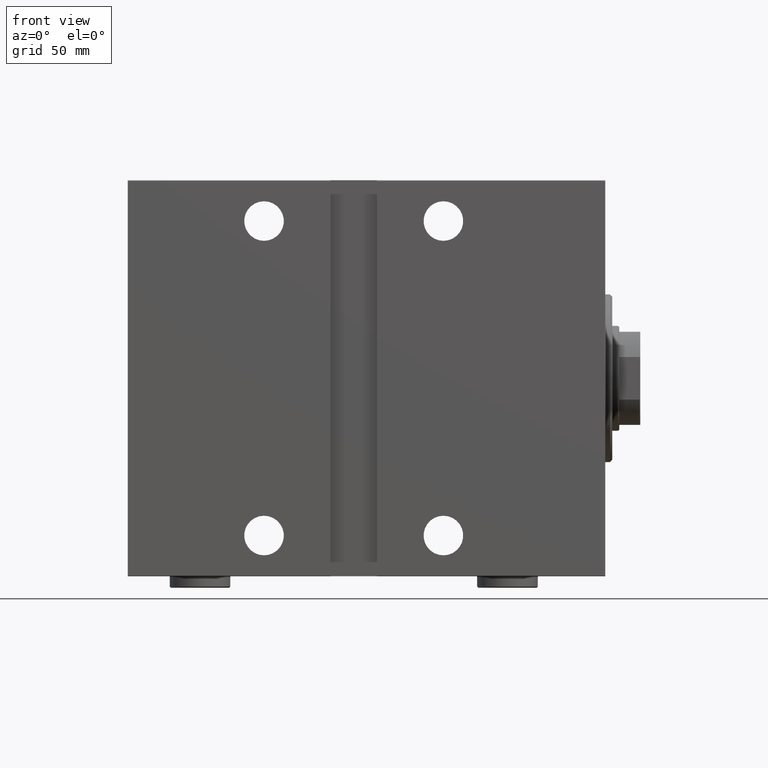
[diagram: clean part render]
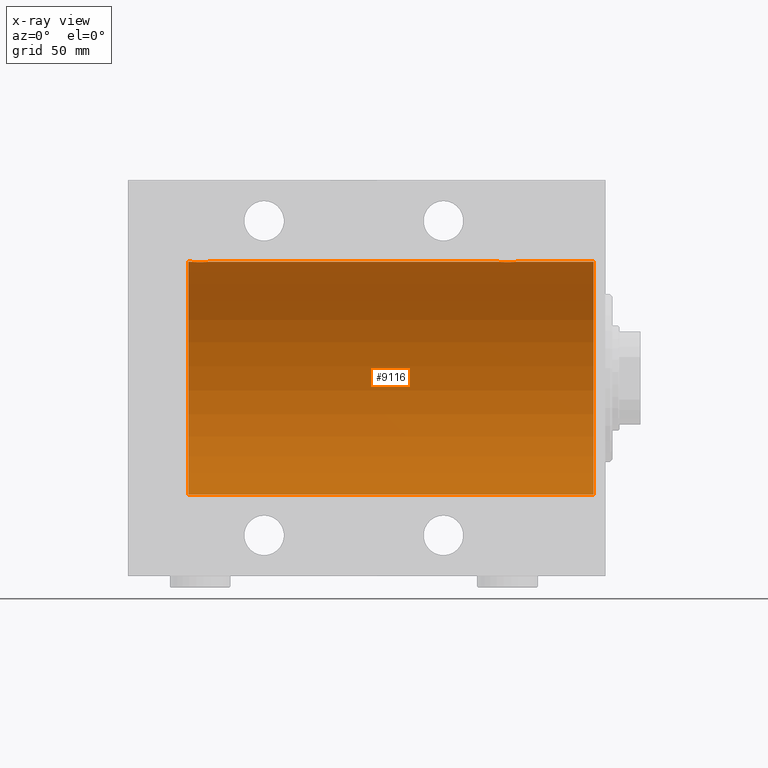
[diagram: x-ray — body ghosted, one internal face saturated and labeled with its STEP entity id]
A machine part, front view, then the same camera in x-ray: the body is ghosted and one INTERNAL B-rep face — a face not visible from any outside direction — is saturated and labeled: STEP entity #9116.
In plain terms, the highlighted cylindrical surface (partial cylindrical patch) has radius 50 mm, axis along (1, 0, -0).
Its self-contained STEP definition (entity closure, byte-faithful):
#615 = CARTESIAN_POINT ( 'NONE',  ( 45.37519984081967550, -2.597781786597460840, 49.93300953359122474 ) ) ;
#955 = DIRECTION ( 'NONE',  ( 0.000000000000000000, 0.000000000000000000, 1.000000000000000000 ) ) ;
#1015 = CARTESIAN_POINT ( 'NONE',  ( 5.000000000000004441, 6.123233995736764507E-15, -50.00000000000000000 ) ) ;
#1061 = CARTESIAN_POINT ( 'NONE',  ( 37.75000000000001421, -0.2773743941468539420, 50.00000000000000711 ) ) ;
#1228 = CARTESIAN_POINT ( 'NONE',  ( 169.7499999999999716, -2.480257572105383217E-23, 50.00000000000000000 ) ) ;
#1283 = CARTESIAN_POINT ( 'NONE',  ( 46.25000000000004263, -0.2808785465865667463, 50.00000000000001421 ) ) ;
#1499 = CARTESIAN_POINT ( 'NONE',  ( 46.11249701080335228, -1.108337267831485340, 49.98846998601261760 ) ) ;
#2008 = CARTESIAN_POINT ( 'NONE',  ( 179.0000000000000000, 0.000000000000000000, 0.000000000000000000 ) ) ;
#2293 = VECTOR ( 'NONE', #17291, 1000.000000000000000 ) ;
#2385 = EDGE_CURVE ( 'NONE', #6071, #35838, #18098, .T. ) ;
#2756 = CARTESIAN_POINT ( 'NONE',  ( 172.8967670396578740, -4.113647494206492006, 49.83052139214891696 ) ) ;
#2974 = CARTESIAN_POINT ( 'NONE',  ( 176.5882021467620575, -3.382416624899780899, 49.88570010427955737 ) ) ;
#3199 = CARTESIAN_POINT ( 'NONE',  ( 174.2772492703791727, -4.250219976861650650, 49.81902879621013369 ) ) ;
#3539 = EDGE_CURVE ( 'NONE', #17909, #41867, #19573, .T. ) ;
#3624 = CARTESIAN_POINT ( 'NONE',  ( 178.1124970108033381, -1.108337267831492889, 49.98846998601261760 ) ) ;
#4444 = VERTEX_POINT ( 'NONE', #41959 ) ;
#4650 = CARTESIAN_POINT ( 'NONE',  ( 41.44002132304353125, -4.222042462213122960, 49.82145436824652762 ) ) ;
#4800 = DIRECTION ( 'NONE',  ( -1.000000000000000000, -0.000000000000000000, -0.000000000000000000 ) ) ;
#5048 = CARTESIAN_POINT ( 'NONE',  ( 179.0000000000000000, 6.123233995736764507E-15, -50.00000000000000000 ) ) ;
#5268 = EDGE_CURVE ( 'NONE', #28151, #35838, #34340, .T. ) ;
#5664 = CARTESIAN_POINT ( 'NONE',  ( 37.75000000000000711, -2.480809774739037926E-23, 50.00000000000000000 ) ) ;
#5953 = AXIS2_PLACEMENT_3D ( 'NONE', #14644, #29231, #955 ) ;
#6071 = VERTEX_POINT ( 'NONE', #1015 ) ;
#6346 = CARTESIAN_POINT ( 'NONE',  ( 175.0973761787903982, -4.115209769591112732, 49.83039196709102470 ) ) ;
#6464 = CARTESIAN_POINT ( 'NONE',  ( 179.0000000000000000, 6.123233995736764507E-15, -50.00000000000000000 ) ) ;
#6503 = ORIENTED_EDGE ( 'NONE', *, *, #5268, .F. ) ;
#6997 = CARTESIAN_POINT ( 'NONE',  ( 177.3751998408196471, -2.597781786597468390, 49.93300953359122474 ) ) ;
#7578 = CARTESIAN_POINT ( 'NONE',  ( 38.17899418014773261, -1.881229021238125521, 49.96525240872481533 ) ) ;
#8018 = CARTESIAN_POINT ( 'NONE',  ( 44.58820214676201488, -3.382416624899780011, 49.88570010427956447 ) ) ;
#8374 = CARTESIAN_POINT ( 'NONE',  ( 169.7499999999999432, -0.2773743941468554408, 50.00000000000000711 ) ) ;
#8463 = CARTESIAN_POINT ( 'NONE',  ( 40.62666563420964394, -4.031616700143186627, 49.83731072121798888 ) ) ;
#8880 = VECTOR ( 'NONE', #4800, 1000.000000000000000 ) ;
#9116 = ADVANCED_FACE ( 'NONE', ( #24983 ), #32361, .F. ) ;
#9484 = CARTESIAN_POINT ( 'NONE',  ( 178.2500000000000000, 3.264240518254796977E-15, 50.00000000000000000 ) ) ;
#10370 = CARTESIAN_POINT ( 'NONE',  ( 177.1992192796128052, -2.811461347331109639, 49.92127983148852621 ) ) ;
#10941 = CARTESIAN_POINT ( 'NONE',  ( 41.71604712973303464, -4.249777379711404457, 49.81906655360197078 ) ) ;
#11164 = CARTESIAN_POINT ( 'NONE',  ( 38.62118282736263097, -2.593114840406128163, 49.93325460257639747 ) ) ;
#11604 = CARTESIAN_POINT ( 'NONE',  ( 40.89676703965783844, -4.113647494206482236, 49.83052139214890985 ) ) ;
#12652 = EDGE_CURVE ( 'NONE', #33656, #26830, #30272, .T. ) ;
#13077 = CARTESIAN_POINT ( 'NONE',  ( 178.2224263552078298, -0.5587117664567154973, 49.99763378604802000 ) ) ;
#13307 = CARTESIAN_POINT ( 'NONE',  ( 172.6266656342096155, -4.031616700143195509, 49.83731072121799599 ) ) ;
#14357 = CARTESIAN_POINT ( 'NONE',  ( 179.0000000000000000, 0.000000000000000000, 50.00000000000000000 ) ) ;
#14439 = EDGE_LOOP ( 'NONE', ( #33265, #41588, #39268, #6503, #23212, #18263, #29198, #39043 ) ) ;
#14627 = DIRECTION ( 'NONE',  ( -1.000000000000000000, 0.000000000000000000, 0.000000000000000000 ) ) ;
#14644 = CARTESIAN_POINT ( 'NONE',  ( 179.0000000000000000, 0.000000000000000000, 0.000000000000000000 ) ) ;
#14752 = CARTESIAN_POINT ( 'NONE',  ( 37.96727357902688027, -1.369753890039652644, 49.98188917176551627 ) ) ;
#14969 = CARTESIAN_POINT ( 'NONE',  ( 46.25000000000000000, 5.983909456282587589E-15, 50.00000000000000000 ) ) ;
#16442 = CARTESIAN_POINT ( 'NONE',  ( 177.8183924898787041, -1.886522330773414913, 49.96505190380066352 ) ) ;
#16663 = CARTESIAN_POINT ( 'NONE',  ( 177.6860283212194815, -2.133925816755183558, 49.95498245321557818 ) ) ;
#16884 = CARTESIAN_POINT ( 'NONE',  ( 171.4068727911404721, -3.378657745070624774, 49.88595615988430154 ) ) ;
#17100 = CARTESIAN_POINT ( 'NONE',  ( 170.3106284432061273, -2.128188802142376268, 49.95522967821975158 ) ) ;
#17291 = DIRECTION ( 'NONE',  ( -1.000000000000000000, -0.000000000000000000, -0.000000000000000000 ) ) ;
#17674 = CARTESIAN_POINT ( 'NONE',  ( 44.12631644875079928, -3.690299572754719204, 49.86386974736159772 ) ) ;
#17885 = CARTESIAN_POINT ( 'NONE',  ( 43.88217049484444487, -3.820681512513376177, 49.85392475515401145 ) ) ;
#17909 = VERTEX_POINT ( 'NONE', #5048 ) ;
#18098 = CIRCLE ( 'NONE', #36713, 50.00000000000000000 ) ;
#18263 = ORIENTED_EDGE ( 'NONE', *, *, #12652, .F. ) ;
#18341 = CARTESIAN_POINT ( 'NONE',  ( 45.81839248987871827, -1.886522330773408029, 49.96505190380065642 ) ) ;
#19573 = CIRCLE ( 'NONE', #21011, 50.00000000000000000 ) ;
#20036 = CARTESIAN_POINT ( 'NONE',  ( 176.8069783183931065, -3.203153387937324403, 49.89767833571684008 ) ) ;
#20698 = CARTESIAN_POINT ( 'NONE',  ( 171.1884693348458484, -3.199146701881689481, 49.89793607725460589 ) ) ;
#20788 = EDGE_CURVE ( 'NONE', #28151, #26830, #39879, .T. ) ;
#21011 = AXIS2_PLACEMENT_3D ( 'NONE', #2008, #39241, #25589 ) ;
#21878 = LINE ( 'NONE', #35529, #8880 ) ;
#21952 = CARTESIAN_POINT ( 'NONE',  ( 39.86863600553846254, -3.687400765141531700, 49.86408552998297949 ) ) ;
#22077 = CARTESIAN_POINT ( 'NONE',  ( 169.7768924720099903, -0.5531336717329072838, 49.99769193709643389 ) ) ;
#22169 = CARTESIAN_POINT ( 'NONE',  ( 42.55408564880149669, -4.222816005855208665, 49.82138837911247009 ) ) ;
#22302 = EDGE_CURVE ( 'NONE', #33656, #4444, #27592, .T. ) ;
#23212 = ORIENTED_EDGE ( 'NONE', *, *, #20788, .T. ) ;
#23548 = LINE ( 'NONE', #6464, #24742 ) ;
#23636 = CARTESIAN_POINT ( 'NONE',  ( 175.8821704948444165, -3.820681512513388167, 49.85392475515401145 ) ) ;
#24072 = CARTESIAN_POINT ( 'NONE',  ( 178.0307979615535032, -1.375411031076039237, 49.98173289062309976 ) ) ;
#24742 = VECTOR ( 'NONE', #26239, 1000.000000000000000 ) ;
#24869 = CARTESIAN_POINT ( 'NONE',  ( 43.36710647554576070, -4.033756670430846292, 49.83713703490974467 ) ) ;
#24983 = FACE_OUTER_BOUND ( 'NONE', #14439, .T. ) ;
#25087 = CARTESIAN_POINT ( 'NONE',  ( 40.11255260607201478, -3.818052230167719330, 49.85412671291930309 ) ) ;
#25318 = CARTESIAN_POINT ( 'NONE',  ( 44.80697831839309941, -3.203153387937316854, 49.89767833571684719 ) ) ;
#25589 = DIRECTION ( 'NONE',  ( 0.000000000000000000, 0.000000000000000000, 1.000000000000000000 ) ) ;
#26239 = DIRECTION ( 'NONE',  ( -1.000000000000000000, -0.000000000000000000, -0.000000000000000000 ) ) ;
#26547 = CARTESIAN_POINT ( 'NONE',  ( 173.7160471297329707, -4.249777379711409786, 49.81906655360197789 ) ) ;
#26830 = VERTEX_POINT ( 'NONE', #27755 ) ;
#26918 = CARTESIAN_POINT ( 'NONE',  ( 179.0000000000000000, 0.000000000000000000, 50.00000000000000000 ) ) ;
#27007 = CARTESIAN_POINT ( 'NONE',  ( 176.1263164487507993, -3.690299572754722313, 49.86386974736159061 ) ) ;
#27592 = B_SPLINE_CURVE_WITH_KNOTS ( 'NONE', 3,
 ( #36612, #8374, #22077, #35730, #37060, #40662, #17100, #30131, #37714, #20698, #16884, #43797, #30584, #13307, #2756, #34355, #26547, #3199, #40872, #6346, #40445, #23636, #27007, #2974, #20036, #10370, #6997, #16663, #16442, #24072, #3624, #13077, #40207, #9484 ),
 .UNSPECIFIED., .F., .F.,
 ( 4, 2, 2, 2, 2, 2, 2, 2, 2, 2, 2, 2, 2, 2, 2, 2, 4 ),
 ( 0.01329343152928759257, 0.01412407817529637809, 0.01495472482130516534, 0.01578537146731395086, 0.01661601811332273637, 0.01744666475933152189, 0.01827731140534030740, 0.01910795805134909292, 0.01993860469735788191, 0.02076925134336666742, 0.02159989798937545294, 0.02243054463538423846, 0.02326119128139302744, 0.02409183792740181296, 0.02492248457341059847, 0.02575313121941938399, 0.02658377786542816951 ),
 .UNSPECIFIED. ) ;
#27755 = CARTESIAN_POINT ( 'NONE',  ( 46.25000000000000000, 5.983909456282587589E-15, 50.00000000000000000 ) ) ;
#28151 = VERTEX_POINT ( 'NONE', #5664 ) ;
#28232 = CARTESIAN_POINT ( 'NONE',  ( 43.09737617879036975, -4.115209769591108291, 49.83039196709102470 ) ) ;
#28449 = CARTESIAN_POINT ( 'NONE',  ( 39.18846933484580575, -3.199146701881673938, 49.89793607725460589 ) ) ;
#28665 = CARTESIAN_POINT ( 'NONE',  ( 38.31062844320613436, -2.128188802142365166, 49.95522967821974447 ) ) ;
#29198 = ORIENTED_EDGE ( 'NONE', *, *, #22302, .T. ) ;
#29231 = DIRECTION ( 'NONE',  ( -1.000000000000000000, -0.000000000000000000, -0.000000000000000000 ) ) ;
#29661 = VECTOR ( 'NONE', #40576, 1000.000000000000000 ) ;
#30131 = CARTESIAN_POINT ( 'NONE',  ( 170.6211828273626452, -2.593114840406140598, 49.93325460257641879 ) ) ;
#30272 = LINE ( 'NONE', #26918, #29661 ) ;
#30584 = CARTESIAN_POINT ( 'NONE',  ( 172.1125526060720006, -3.818052230167728656, 49.85412671291929598 ) ) ;
#30813 = EDGE_CURVE ( 'NONE', #41867, #4444, #21878, .T. ) ;
#31373 = CARTESIAN_POINT ( 'NONE',  ( 45.19921927961282648, -2.811461347331102534, 49.92127983148852621 ) ) ;
#31677 = CARTESIAN_POINT ( 'NONE',  ( 5.000000000000004441, 0.000000000000000000, 0.000000000000000000 ) ) ;
#32033 = CARTESIAN_POINT ( 'NONE',  ( 46.22242635520780851, -0.5587117664567096131, 49.99763378604802000 ) ) ;
#32246 = CARTESIAN_POINT ( 'NONE',  ( 37.75000000000000711, -2.480809774739037926E-23, 50.00000000000000000 ) ) ;
#32361 = CYLINDRICAL_SURFACE ( 'NONE', #5953, 50.00000000000000000 ) ;
#33265 = ORIENTED_EDGE ( 'NONE', *, *, #3539, .F. ) ;
#33656 = VERTEX_POINT ( 'NONE', #1228 ) ;
#34340 = LINE ( 'NONE', #14357, #2293 ) ;
#34355 = CARTESIAN_POINT ( 'NONE',  ( 173.4400213230435668, -4.222042462213131842, 49.82145436824653473 ) ) ;
#34936 = CARTESIAN_POINT ( 'NONE',  ( 46.03079796155342507, -1.375411031076031687, 49.98173289062309976 ) ) ;
#34985 = CARTESIAN_POINT ( 'NONE',  ( 5.000000000000004441, 0.000000000000000000, 50.00000000000000000 ) ) ;
#35381 = CARTESIAN_POINT ( 'NONE',  ( 38.79696438048010521, -2.807099414226279066, 49.92152599098506016 ) ) ;
#35529 = CARTESIAN_POINT ( 'NONE',  ( 179.0000000000000000, 0.000000000000000000, 50.00000000000000000 ) ) ;
#35730 = CARTESIAN_POINT ( 'NONE',  ( 169.8856808669398788, -1.101350136471746399, 49.98862054280448319 ) ) ;
#35818 = CARTESIAN_POINT ( 'NONE',  ( 37.77689247200999034, -0.5531336717329059516, 49.99769193709643389 ) ) ;
#35838 = VERTEX_POINT ( 'NONE', #34985 ) ;
#36612 = CARTESIAN_POINT ( 'NONE',  ( 169.7499999999999716, -2.480257572105383217E-23, 50.00000000000000000 ) ) ;
#36713 = AXIS2_PLACEMENT_3D ( 'NONE', #31677, #14627, #41771 ) ;
#37060 = CARTESIAN_POINT ( 'NONE',  ( 169.9672735790268803, -1.369753890039667299, 49.98188917176553048 ) ) ;
#37714 = CARTESIAN_POINT ( 'NONE',  ( 170.7969643804800626, -2.807099414226295941, 49.92152599098506727 ) ) ;
#37782 = EDGE_CURVE ( 'NONE', #17909, #6071, #23548, .T. ) ;
#38291 = CARTESIAN_POINT ( 'NONE',  ( 37.88568086693991432, -1.101350136471744623, 49.98862054280447609 ) ) ;
#38512 = CARTESIAN_POINT ( 'NONE',  ( 45.68602832121950286, -2.133925816755175564, 49.95498245321557818 ) ) ;
#38730 = CARTESIAN_POINT ( 'NONE',  ( 42.27724927037917979, -4.250219976861642657, 49.81902879621012659 ) ) ;
#39043 = ORIENTED_EDGE ( 'NONE', *, *, #30813, .F. ) ;
#39241 = DIRECTION ( 'NONE',  ( -1.000000000000000000, 0.000000000000000000, 0.000000000000000000 ) ) ;
#39268 = ORIENTED_EDGE ( 'NONE', *, *, #2385, .T. ) ;
#39879 = B_SPLINE_CURVE_WITH_KNOTS ( 'NONE', 3,
 ( #32246, #1061, #35818, #38291, #14752, #7578, #28665, #11164, #35381, #28449, #41895, #21952, #25087, #8463, #11604, #4650, #10941, #38730, #22169, #28232, #24869, #17885, #17674, #8018, #25318, #31373, #615, #38512, #18341, #34936, #1499, #32033, #1283, #14969 ),
 .UNSPECIFIED., .F., .F.,
 ( 4, 2, 2, 2, 2, 2, 2, 2, 2, 2, 2, 2, 2, 2, 2, 2, 4 ),
 ( 0.01329343152928760124, 0.01412407817529638850, 0.01495472482130517575, 0.01578537146731396126, 0.01661601811332274678, 0.01744666475933153577, 0.01827731140534032128, 0.01910795805134911027, 0.01993860469735789925, 0.02076925134336668477, 0.02159989798937547029, 0.02243054463538425927, 0.02326119128139304479, 0.02409183792740183377, 0.02492248457341061929, 0.02575313121941940481, 0.02658377786542819379 ),
 .UNSPECIFIED. ) ;
#40207 = CARTESIAN_POINT ( 'NONE',  ( 178.2500000000000284, -0.2808785465865648034, 50.00000000000001421 ) ) ;
#40445 = CARTESIAN_POINT ( 'NONE',  ( 175.3671064755457678, -4.033756670430855173, 49.83713703490974467 ) ) ;
#40576 = DIRECTION ( 'NONE',  ( -1.000000000000000000, -0.000000000000000000, -0.000000000000000000 ) ) ;
#40662 = CARTESIAN_POINT ( 'NONE',  ( 170.1789941801477823, -1.881229021238139731, 49.96525240872482954 ) ) ;
#40872 = CARTESIAN_POINT ( 'NONE',  ( 174.5540856488014754, -4.222816005855213106, 49.82138837911247009 ) ) ;
#41588 = ORIENTED_EDGE ( 'NONE', *, *, #37782, .T. ) ;
#41771 = DIRECTION ( 'NONE',  ( 0.000000000000000000, 0.000000000000000000, 1.000000000000000000 ) ) ;
#41867 = VERTEX_POINT ( 'NONE', #43075 ) ;
#41895 = CARTESIAN_POINT ( 'NONE',  ( 39.40687279114044372, -3.378657745070624774, 49.88595615988428733 ) ) ;
#41959 = CARTESIAN_POINT ( 'NONE',  ( 178.2500000000000000, 3.264240518254796977E-15, 50.00000000000000000 ) ) ;
#43075 = CARTESIAN_POINT ( 'NONE',  ( 179.0000000000000000, 0.000000000000000000, 50.00000000000000000 ) ) ;
#43797 = CARTESIAN_POINT ( 'NONE',  ( 171.8686360055384910, -3.687400765141532144, 49.86408552998298660 ) ) ;